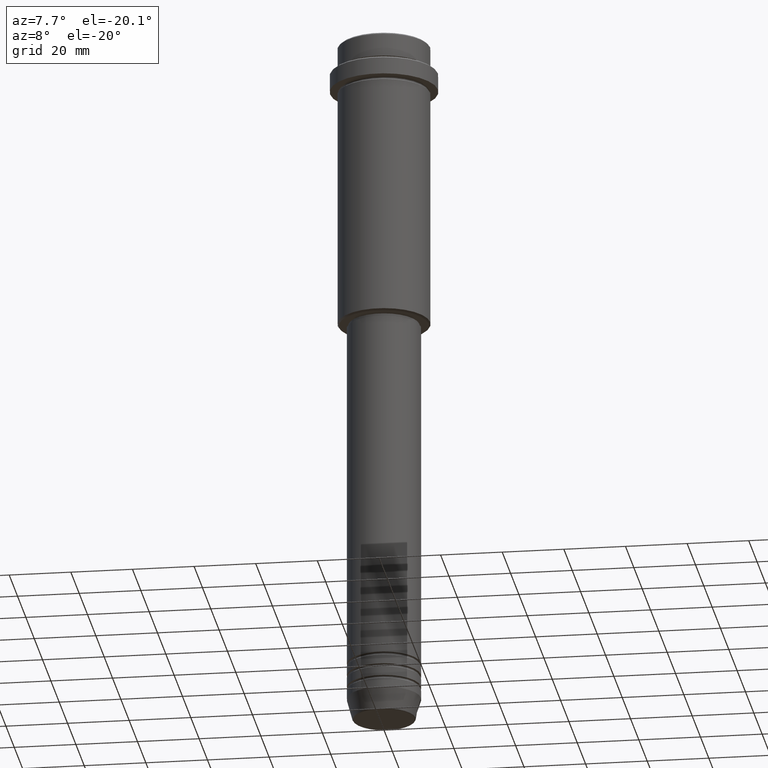
[diagram: clean part render]
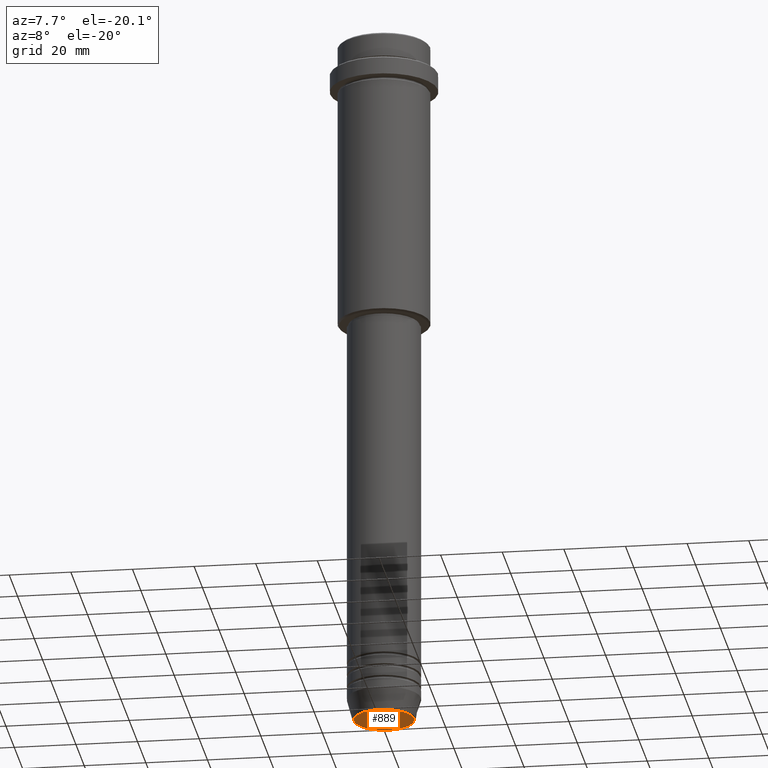
[diagram: same view with one face highlighted and labeled with its STEP entity id]
A machine part, auxiliary view. The second image highlights one B-rep face of the part: STEP entity #889.
In plain terms, the highlighted planar face has unit normal (0, -0, 1).
Its self-contained STEP definition (entity closure, byte-faithful):
#30 = CARTESIAN_POINT ( 'NONE',  ( 0.000000000000000000, 0.000000000000000000, -229.9999999999999716 ) ) ;
#37 = AXIS2_PLACEMENT_3D ( 'NONE', #898, #334, #573 ) ;
#177 = DIRECTION ( 'NONE',  ( 1.000000000000000000, 0.000000000000000000, 0.000000000000000000 ) ) ;
#270 = EDGE_CURVE ( 'NONE', #616, #285, #813, .T. ) ;
#285 = VERTEX_POINT ( 'NONE', #516 ) ;
#329 = AXIS2_PLACEMENT_3D ( 'NONE', #30, #1342, #177 ) ;
#334 = DIRECTION ( 'NONE',  ( 0.000000000000000000, -0.000000000000000000, 1.000000000000000000 ) ) ;
#449 = EDGE_CURVE ( 'NONE', #285, #616, #542, .T. ) ;
#516 = CARTESIAN_POINT ( 'NONE',  ( 9.740692158992658278, 0.000000000000000000, -229.9999999999999716 ) ) ;
#542 = CIRCLE ( 'NONE', #1359, 9.740692158992658278 ) ;
#557 = FACE_OUTER_BOUND ( 'NONE', #757, .T. ) ;
#573 = DIRECTION ( 'NONE',  ( 1.000000000000000000, 0.000000000000000000, 0.000000000000000000 ) ) ;
#583 = ORIENTED_EDGE ( 'NONE', *, *, #449, .T. ) ;
#616 = VERTEX_POINT ( 'NONE', #947 ) ;
#681 = DIRECTION ( 'NONE',  ( 0.000000000000000000, 0.000000000000000000, -1.000000000000000000 ) ) ;
#757 = EDGE_LOOP ( 'NONE', ( #583, #1168 ) ) ;
#771 = DIRECTION ( 'NONE',  ( 1.000000000000000000, 0.000000000000000000, 0.000000000000000000 ) ) ;
#813 = CIRCLE ( 'NONE', #329, 9.740692158992658278 ) ;
#889 = ADVANCED_FACE ( 'NONE', ( #557 ), #1314, .F. ) ;
#898 = CARTESIAN_POINT ( 'NONE',  ( 0.000000000000000000, 0.000000000000000000, -229.9999999999999716 ) ) ;
#947 = CARTESIAN_POINT ( 'NONE',  ( -9.740692158992658278, 1.222463696683474999E-15, -229.9999999999999716 ) ) ;
#1168 = ORIENTED_EDGE ( 'NONE', *, *, #270, .T. ) ;
#1314 = PLANE ( 'NONE',  #37 ) ;
#1326 = CARTESIAN_POINT ( 'NONE',  ( 0.000000000000000000, 0.000000000000000000, -229.9999999999999716 ) ) ;
#1342 = DIRECTION ( 'NONE',  ( 0.000000000000000000, 0.000000000000000000, -1.000000000000000000 ) ) ;
#1359 = AXIS2_PLACEMENT_3D ( 'NONE', #1326, #681, #771 ) ;